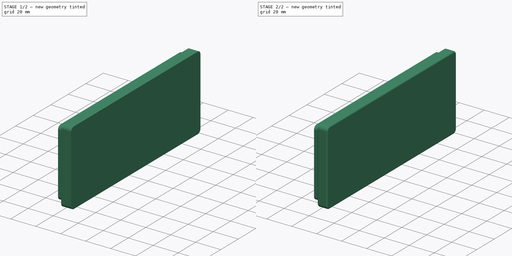
[diagram: build sequence overview — one tinted view per stage of 2, left to right]
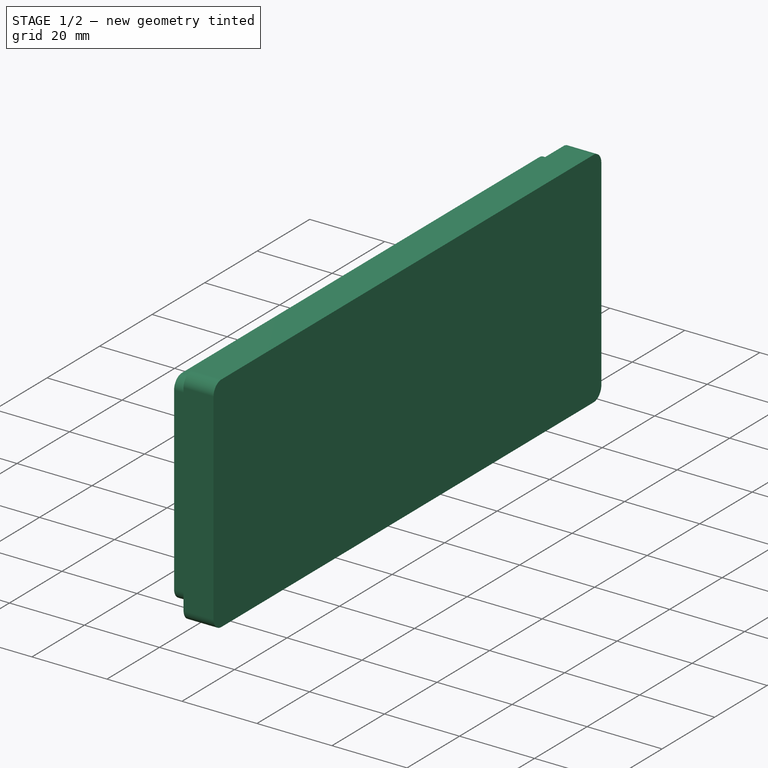
[diagram: stage 1 of 2 — iso view after this stage's code; geometry added in this stage tinted green]
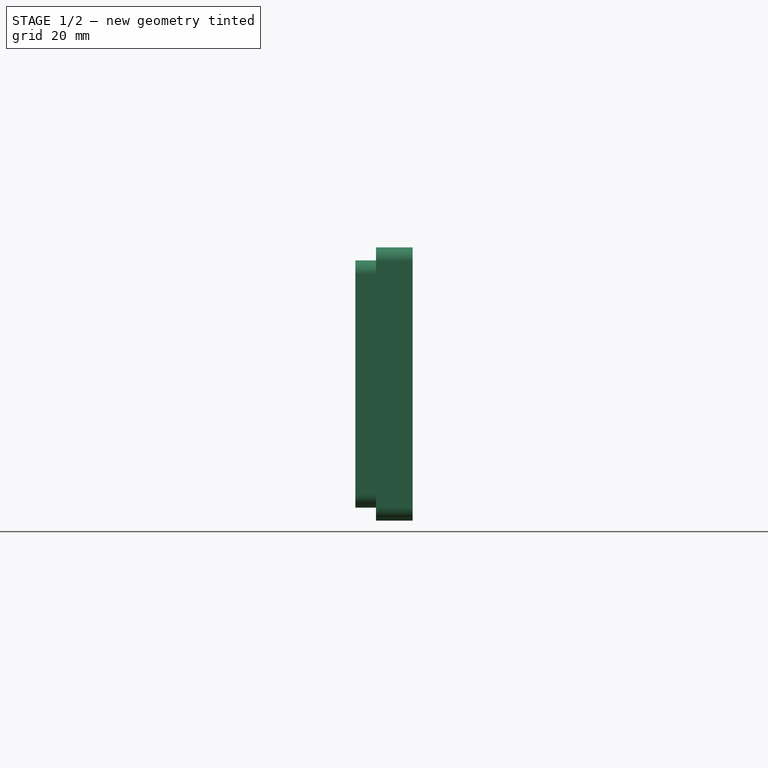
[diagram: stage 1 of 2 — front view after this stage's code; geometry added in this stage tinted green]
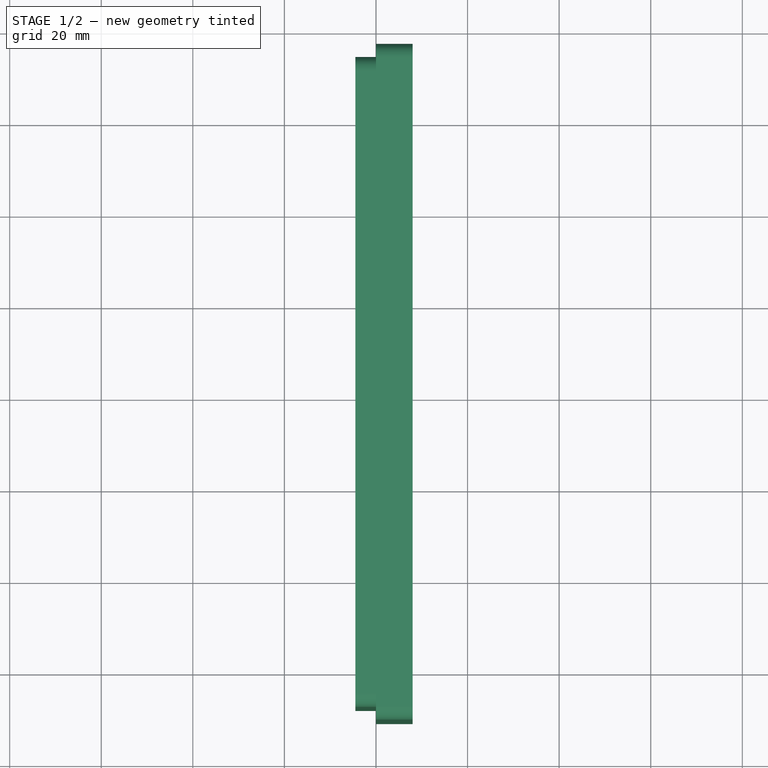
[diagram: stage 1 of 2 — top view after this stage's code; geometry added in this stage tinted green]
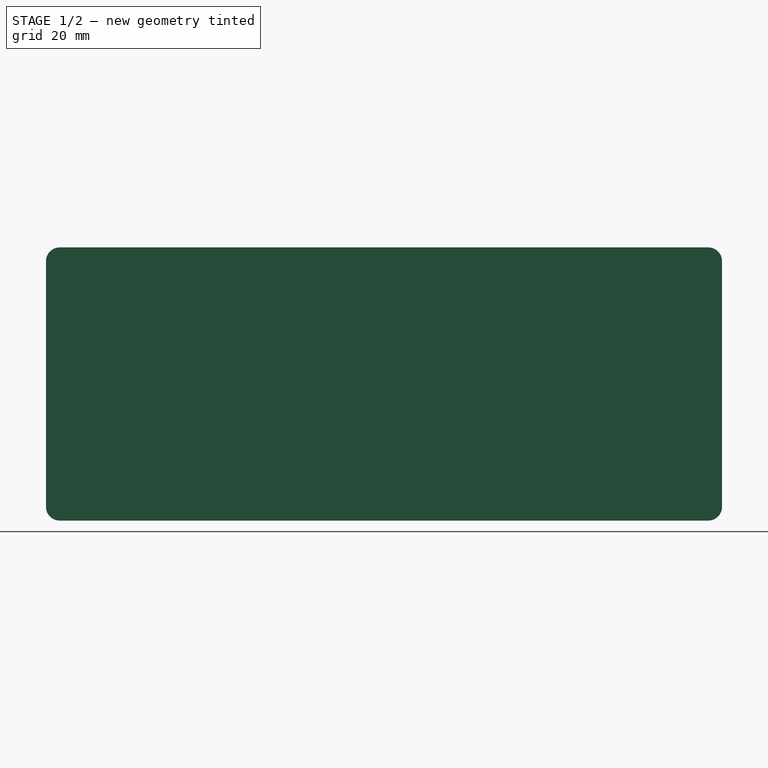
[diagram: stage 1 of 2 — right view after this stage's code; geometry added in this stage tinted green]
FCSTD DOCUMENT  (FreeCAD 0.17R13541 (Git))
Label: wooden-panel
License: All rights reserved
LicenseURL: http://en.wikipedia.org/wiki/All_rights_reserved
objects: Sketcher::SketchObject×2, PartDesign::Pad×2, PartDesign::Fillet×1, PartDesign::Body×1
note: 8 computed .brp shape members not serialized (recipe doc carries the construction recipe); baked Part::Feature solids carry a one-line shape summary decoded from their .brp

FEATURE [Sketcher::SketchObject] Sketch
  Placement = pos=(0,0,0) rot=(0.57735,0.57735,0.57735;2.0944rad)
  sketch-geometry (8):
    g0: LineSegment StartX=-65 StartY=27 StartZ=0 EndX=71 EndY=27 EndZ=0
    g1: LineSegment StartX=74 StartY=24 StartZ=0 EndX=74 EndY=-24 EndZ=0
    g2: LineSegment StartX=71 StartY=-27 StartZ=0 EndX=-65 EndY=-27 EndZ=0
    g3: LineSegment StartX=-68 StartY=-24 StartZ=0 EndX=-68 EndY=24 EndZ=0
    g4: ArcOfCircle CenterX=71 CenterY=24 CenterZ=0 NormalX=0 NormalY=0 NormalZ=1 AngleXU=0 Radius=3 StartAngle=0 EndAngle=1.5708
    g5: ArcOfCircle CenterX=71 CenterY=-24 CenterZ=0 NormalX=0 NormalY=0 NormalZ=1 AngleXU=0 Radius=3 StartAngle=4.71239 EndAngle=6.28319
    g6: ArcOfCircle CenterX=-65 CenterY=-24 CenterZ=0 NormalX=0 NormalY=0 NormalZ=1 AngleXU=0 Radius=3 StartAngle=3.14159 EndAngle=4.71239
    g7: ArcOfCircle CenterX=-65 CenterY=24 CenterZ=0 NormalX=0 NormalY=0 NormalZ=1 AngleXU=0 Radius=3 StartAngle=1.5708 EndAngle=3.14159
  constraints (20):
    c: Horizontal(g0)
    c: Horizontal(g2)
    c: Vertical(g1)
    c: Vertical(g3)
    c: Tangent(g0,g4) = 1.5708
    c: Tangent(g1,g4) = 1.5708
    c: Tangent(g1,g5) = 1.5708
    c: Tangent(g2,g5) = 1.5708
    c: Tangent(g2,g6) = 1.5708
    c: Tangent(g3,g6) = 1.5708
    c: Tangent(g0,g7) = 1.5708
    c: Tangent(g3,g7) = 1.5708
    c: Radius(g7) = 3
    c: Equal(g7,g4)
    c: Equal(g7,g5)
    c: Equal(g7,g6)
    c: Distance(g1,g3) = 142
    c: Distance(g0,g2) = 54
    c: DistanceX(g-2,g0) = 71
    c: DistanceY(g-1,g0) = 27
FEATURE [PartDesign::Pad] Pad  label="Pad-in"
  Length = 4.5
  Length2 = 100
  Placement = pos=(0,0,0) rot=(0.57735,0.57735,0.57735;2.0944rad)
  Profile = -> Sketch
  Reversed = true
  Type = 0
FEATURE [Sketcher::SketchObject] Sketch001
  ExternalGeometry = -> [Pad]
  MapMode = 5
  Placement = pos=(0,0,0) rot=(0.57735,0.57735,0.57735;2.0944rad)
  Support = -> [YZ_Plane]
  sketch-geometry (10):
    g0: LineSegment StartX=-67.8284 StartY=29.8284 StartZ=0 EndX=73.8284 EndY=29.8284 EndZ=0
    g1: LineSegment StartX=76.8284 StartY=26.8284 StartZ=0 EndX=76.8284 EndY=-26.8284 EndZ=0
    g2: LineSegment StartX=73.8284 StartY=-29.8284 StartZ=0 EndX=-67.8284 EndY=-29.8284 EndZ=0
    g3: LineSegment StartX=-70.8284 StartY=-26.8284 StartZ=0 EndX=-70.8284 EndY=26.8284 EndZ=0
    g4: ArcOfCircle CenterX=73.8284 CenterY=26.8284 CenterZ=0 NormalX=0 NormalY=0 NormalZ=1 AngleXU=0 Radius=3 StartAngle=0 EndAngle=1.5708
    g5: ArcOfCircle CenterX=73.8284 CenterY=-26.8284 CenterZ=0 NormalX=0 NormalY=0 NormalZ=1 AngleXU=0 Radius=3 StartAngle=4.71239 EndAngle=6.28319
    g6: ArcOfCircle CenterX=-67.8284 CenterY=-26.8284 CenterZ=0 NormalX=0 NormalY=0 NormalZ=1 AngleXU=0 Radius=3 StartAngle=3.14159 EndAngle=4.71239
    g7: ArcOfCircle CenterX=-67.8284 CenterY=26.8284 CenterZ=0 NormalX=0 NormalY=0 NormalZ=1 AngleXU=0 Radius=3 StartAngle=1.5708 EndAngle=3.14159
    g8: LineSegment [constr] StartX=-65 StartY=24 StartZ=0 EndX=-67.8284 EndY=26.8284 EndZ=0
    g9: LineSegment [constr] StartX=71 StartY=-24 StartZ=0 EndX=73.8284 EndY=-26.8284 EndZ=0
  constraints (24):
    c: Horizontal(g0)
    c: Horizontal(g2)
    c: Vertical(g1)
    c: Vertical(g3)
    c: Tangent(g0,g4) = 1.5708
    c: Tangent(g1,g4) = 1.5708
    c: Tangent(g1,g5) = 1.5708
    c: Tangent(g2,g5) = 1.5708
    c: Tangent(g2,g6) = 1.5708
    c: Tangent(g3,g6) = 1.5708
    c: Tangent(g0,g7) = 1.5708
    c: Tangent(g3,g7) = 1.5708
    c: Radius(g6) = 3  'radius'
    c: Equal(g6,g4)
    c: Equal(g6,g7)
    c: Equal(g4,g5)
    c: Coincident(g8,g-6)
    c: Coincident(g8,g7)
    c: Angle(g-1,g8) = 2.35619
    c: Coincident(g9,g-4)
    c: Coincident(g5,g9)
    c: Angle(g-1,g9) = 2.35619
    c: Equal(g9,g8)
    c: Distance(g8) = 4  'offset'
FEATURE [PartDesign::Pad] Pad001  label="Pad-out"
  BaseFeature = -> Pad
  Length = 8
  Length2 = 100
  Placement = pos=(0,0,0) rot=(0.57735,0.57735,0.57735;2.0944rad)
  Profile = -> Sketch001
  Type = 0
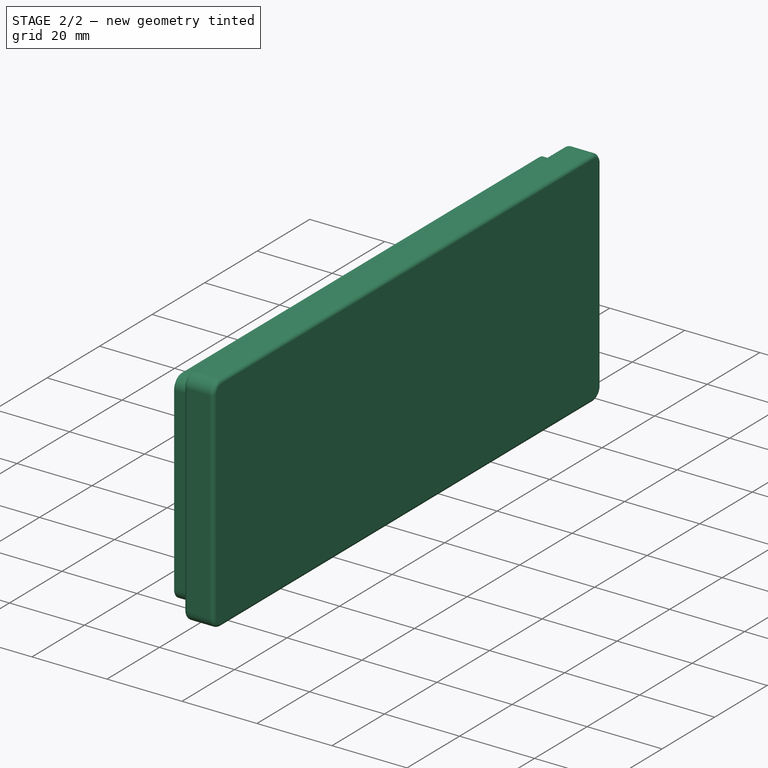
[diagram: stage 2 of 2 — iso view after this stage's code; geometry added in this stage tinted green]
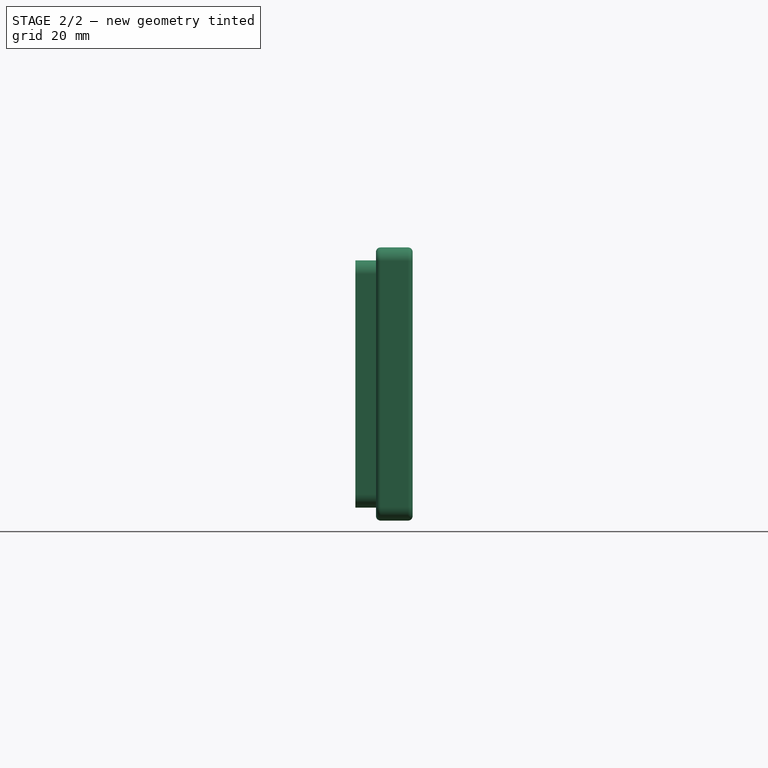
[diagram: stage 2 of 2 — front view after this stage's code; geometry added in this stage tinted green]
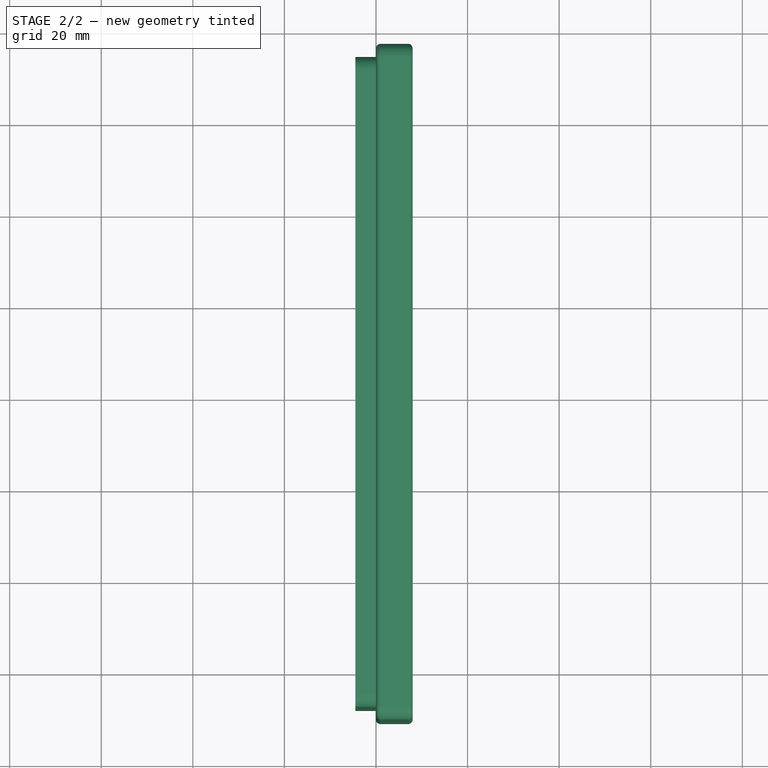
[diagram: stage 2 of 2 — top view after this stage's code; geometry added in this stage tinted green]
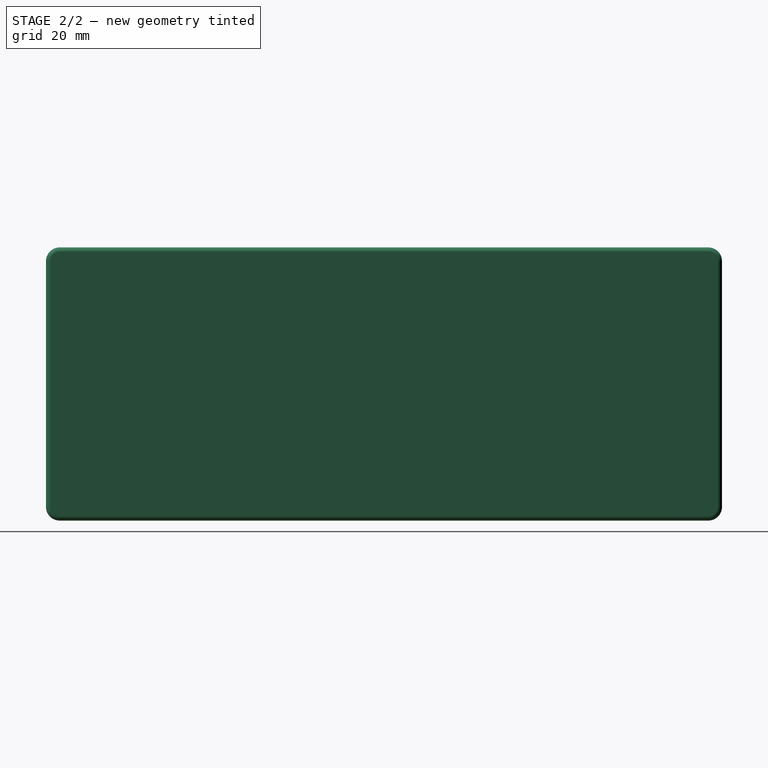
[diagram: stage 2 of 2 — right view after this stage's code; geometry added in this stage tinted green]
FEATURE [PartDesign::Fillet] Fillet
  Base = -> Pad001 [Edge25,Edge26,Edge28,Edge37,Edge41,Edge35,Edge30,Edge45,Edge48,Edge32,Edge31,Edge47,Edge29,Edge43,Edge27,Edge39]
  BaseFeature = -> Pad001
  Placement = pos=(0,0,0) rot=(0.57735,0.57735,0.57735;2.0944rad)
  Radius = 1
FEATURE [PartDesign::Body] Body
  Group = -> [Sketch,Pad,Sketch001,Pad001,Fillet]
  Origin = -> Origin
  Tip = -> Fillet
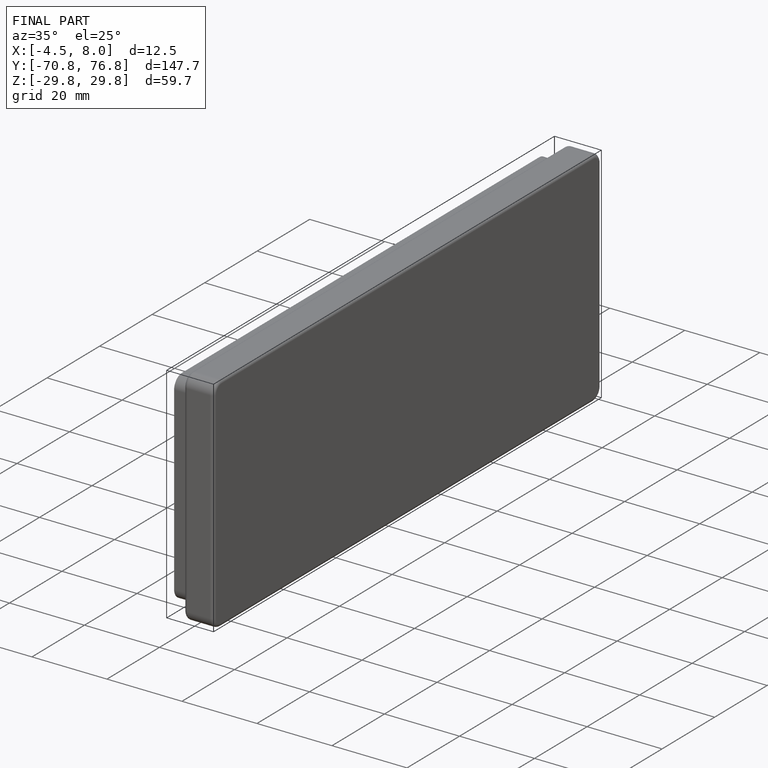
[diagram: finished part — iso view with bounding-box wireframe]
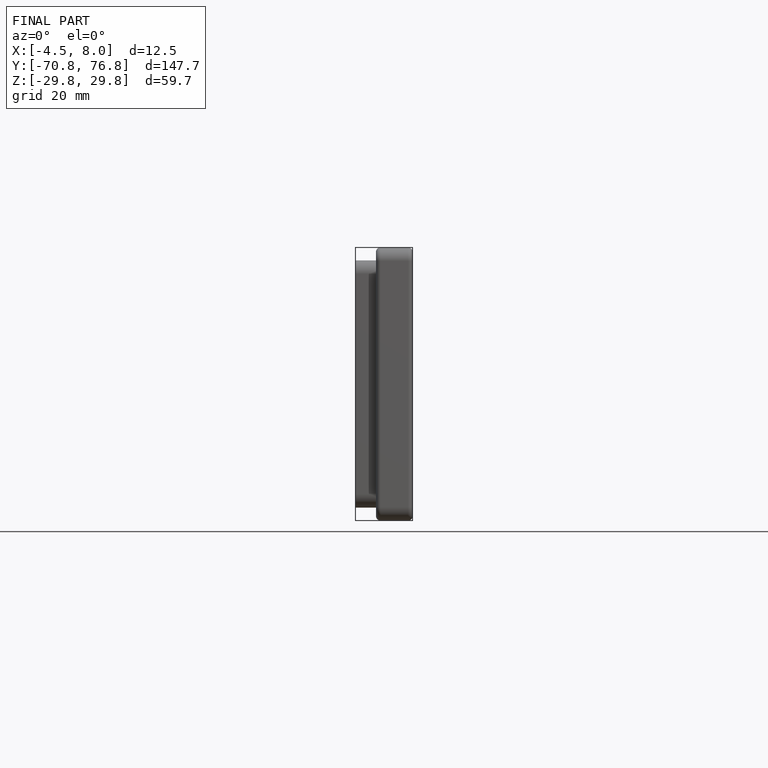
[diagram: finished part — front view with bounding-box wireframe]
